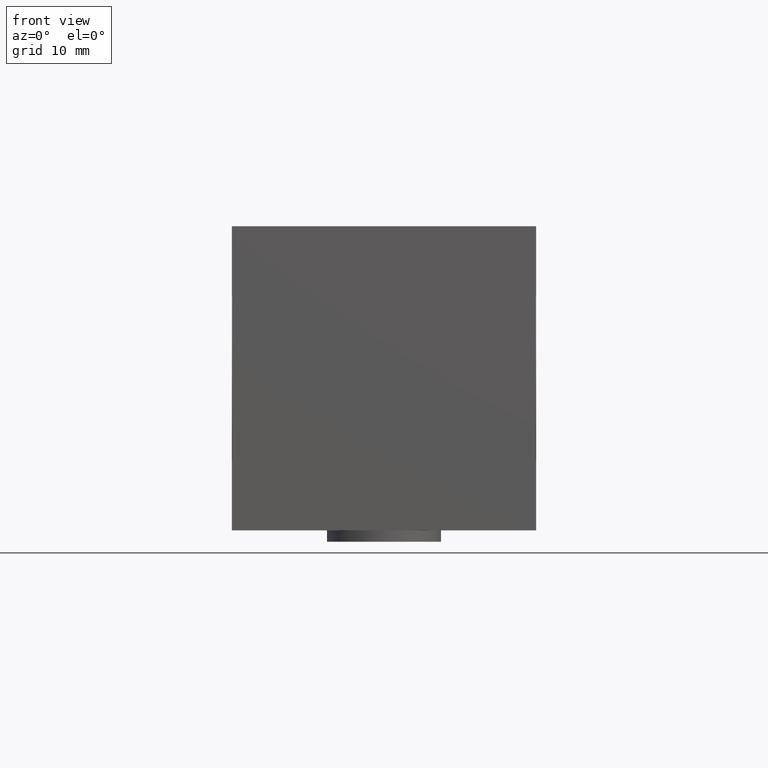
[diagram: clean part render]
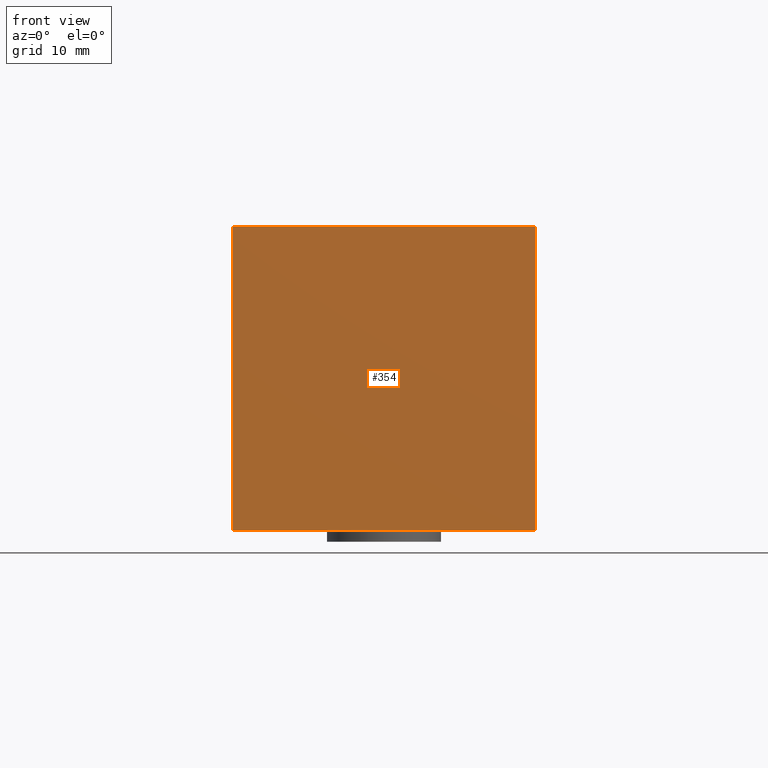
[diagram: same view with one face highlighted and labeled with its STEP entity id]
A machine part, front view. The second image highlights one B-rep face of the part: STEP entity #354.
In plain terms, the highlighted planar face has unit normal (0, 1, 0).
Its self-contained STEP definition (entity closure, byte-faithful):
#354 = ADVANCED_FACE( '', ( #746 ), #747, .F. );
#746 = FACE_OUTER_BOUND( '', #1191, .T. );
#747 = PLANE( '', #1192 );
#1191 = EDGE_LOOP( '', ( #1960, #1961, #1962, #1963, #1964, #1965 ) );
#1192 = AXIS2_PLACEMENT_3D( '', #1966, #1967, #1968 );
#1960 = ORIENTED_EDGE( '', *, *, #2702, .T. );
#1961 = ORIENTED_EDGE( '', *, *, #2691, .T. );
#1962 = ORIENTED_EDGE( '', *, *, #2703, .F. );
#1963 = ORIENTED_EDGE( '', *, *, #2538, .F. );
#1964 = ORIENTED_EDGE( '', *, *, #2424, .F. );
#1965 = ORIENTED_EDGE( '', *, *, #2669, .T. );
#1966 = CARTESIAN_POINT( '', ( 19.9500000000000, -12.0000000000000, 20.0000000000000 ) );
#1967 = DIRECTION( '', ( -0.000000000000000, 1.00000000000000, 0.000000000000000 ) );
#1968 = DIRECTION( '', ( 0.000000000000000, -0.000000000000000, 1.00000000000000 ) );
#2424 = EDGE_CURVE( '', #2819, #2814, #2821, .T. );
#2538 = EDGE_CURVE( '', #2814, #3008, #3009, .T. );
#2669 = EDGE_CURVE( '', #2819, #3204, #3206, .T. );
#2691 = EDGE_CURVE( '', #3235, #3239, #3241, .T. );
#2702 = EDGE_CURVE( '', #3204, #3235, #3256, .T. );
#2703 = EDGE_CURVE( '', #3008, #3239, #3257, .T. );
#2814 = VERTEX_POINT( '', #3387 );
#2819 = VERTEX_POINT( '', #3393 );
#2821 = LINE( '', #3396, #3397 );
#3008 = VERTEX_POINT( '', #3648 );
#3009 = LINE( '', #3649, #3650 );
#3204 = VERTEX_POINT( '', #3903 );
#3206 = LINE( '', #3906, #3907 );
#3235 = VERTEX_POINT( '', #3945 );
#3239 = VERTEX_POINT( '', #3950 );
#3241 = LINE( '', #3953, #3954 );
#3256 = LINE( '', #3973, #3974 );
#3257 = LINE( '', #3975, #3976 );
#3387 = CARTESIAN_POINT( '', ( 19.9500000000000, -12.0000000000000, 1.73472347597681E-015 ) );
#3393 = CARTESIAN_POINT( '', ( 19.9500000000000, -12.0000000000000, 20.0000000000000 ) );
#3396 = CARTESIAN_POINT( '', ( 19.9500000000000, -12.0000000000000, 20.0000000000000 ) );
#3397 = VECTOR( '', #4146, 1000.00000000000 );
#3648 = CARTESIAN_POINT( '', ( 19.9500000000000, -12.0000000000000, -20.0000000000000 ) );
#3649 = CARTESIAN_POINT( '', ( 19.9500000000000, -12.0000000000000, 20.0000000000000 ) );
#3650 = VECTOR( '', #4274, 1000.00000000000 );
#3903 = CARTESIAN_POINT( '', ( -19.9500000000000, -12.0000000000000, 20.0000000000000 ) );
#3906 = CARTESIAN_POINT( '', ( 19.9500000000000, -12.0000000000000, 20.0000000000000 ) );
#3907 = VECTOR( '', #4445, 1000.00000000000 );
#3945 = CARTESIAN_POINT( '', ( -19.9500000000000, -12.0000000000000, 1.73472347597681E-015 ) );
#3950 = CARTESIAN_POINT( '', ( -19.9500000000000, -12.0000000000000, -20.0000000000000 ) );
#3953 = CARTESIAN_POINT( '', ( -19.9500000000000, -12.0000000000000, 20.0000000000000 ) );
#3954 = VECTOR( '', #4469, 1000.00000000000 );
#3973 = CARTESIAN_POINT( '', ( -19.9500000000000, -12.0000000000000, 20.0000000000000 ) );
#3974 = VECTOR( '', #4477, 1000.00000000000 );
#3975 = CARTESIAN_POINT( '', ( 19.9500000000000, -12.0000000000000, -20.0000000000000 ) );
#3976 = VECTOR( '', #4478, 1000.00000000000 );
#4146 = DIRECTION( '', ( 0.000000000000000, 0.000000000000000, -1.00000000000000 ) );
#4274 = DIRECTION( '', ( 0.000000000000000, 0.000000000000000, -1.00000000000000 ) );
#4445 = DIRECTION( '', ( -1.00000000000000, -0.000000000000000, -0.000000000000000 ) );
#4469 = DIRECTION( '', ( 0.000000000000000, 0.000000000000000, -1.00000000000000 ) );
#4477 = DIRECTION( '', ( 0.000000000000000, 0.000000000000000, -1.00000000000000 ) );
#4478 = DIRECTION( '', ( -1.00000000000000, -0.000000000000000, -0.000000000000000 ) );